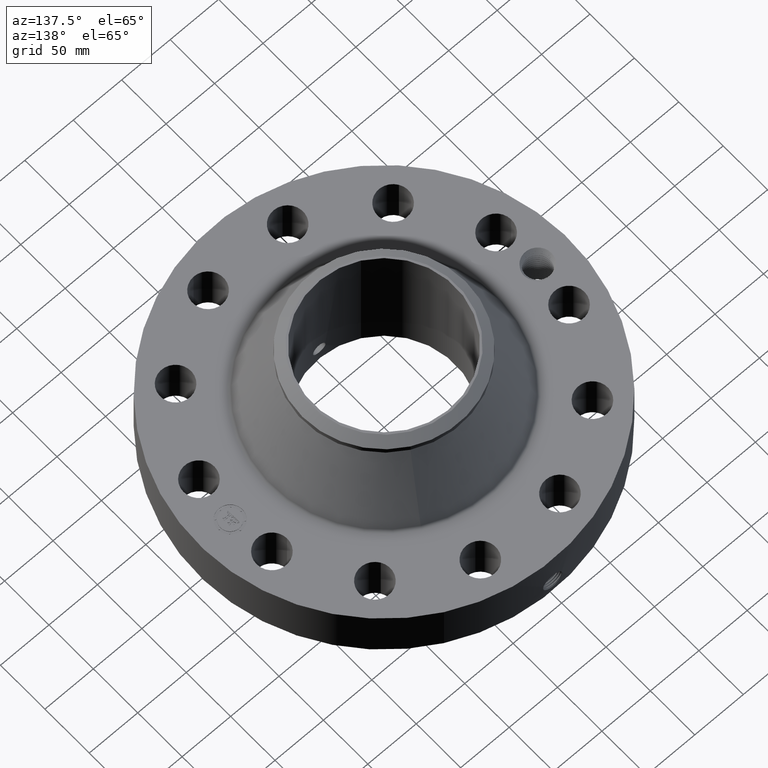
[diagram: clean part render]
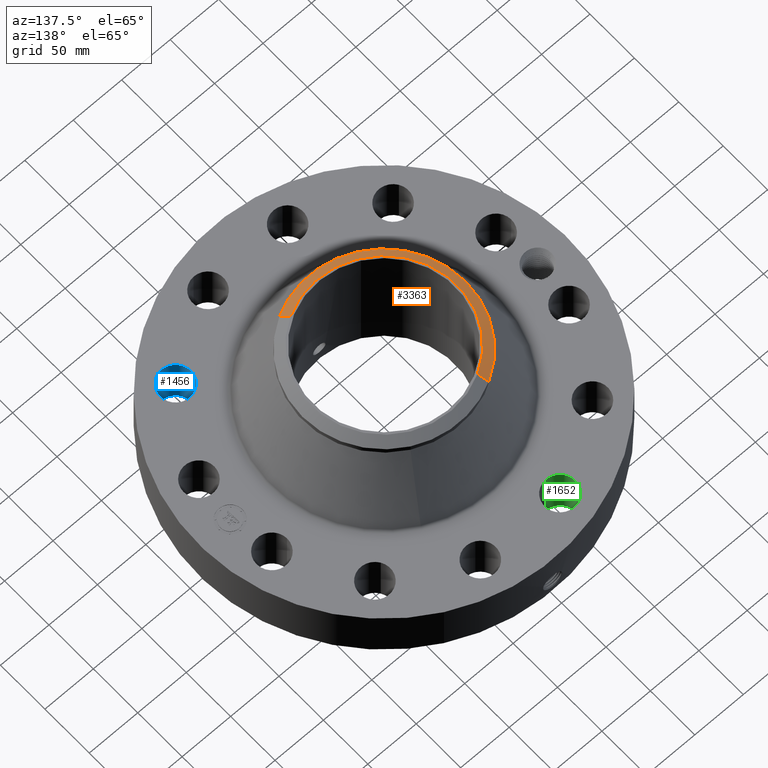
[diagram: same view with three faces highlighted in distinct colors, each labeled with its STEP entity id]
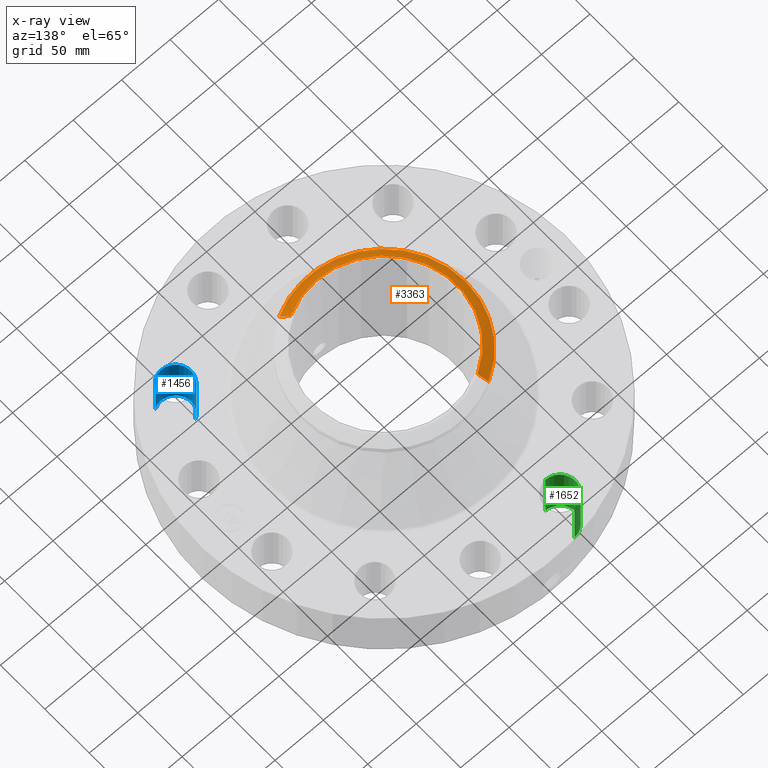
[diagram: x-ray of the same camera — body ghosted, the three highlighted faces saturated]
A machine part, auxiliary view with three faces highlighted in distinct colors.
The next image is the same camera in x-ray (body ghosted, the three faces saturated) — at least one of them is partly hidden behind the body in this view.
Their STEP definitions:

[orange] entity #3363 — the highlighted conical surface has half-angle 52.5 deg.
#2529=AXIS2_PLACEMENT_3D('Circle Axis2P3D',#2527,#2528,$) ;
#3328=AXIS2_PLACEMENT_3D('Cone Axis2P3D',#3325,#3326,#3327) ;
#3346=AXIS2_PLACEMENT_3D('Circle Axis2P3D',#3344,#3345,$) ;
#3353=AXIS2_PLACEMENT_3D('Circle Axis2P3D',#3351,#3352,$) ;
#2522=CARTESIAN_POINT('Vertex',(1.41873530636,-2.59697755866,5.75000000002)) ;
#2524=CARTESIAN_POINT('Vertex',(-1.41873530636,2.59697755866,5.75000000002)) ;
#2527=CARTESIAN_POINT('Axis2P3D Location',(0.,0.,5.75000000002)) ;
#3325=CARTESIAN_POINT('Axis2P3D Location',(0.,0.,5.75000000002)) ;
#3330=CARTESIAN_POINT('Line Origine',(1.50401548342,-2.75308187567,5.61350793582)) ;
#3334=CARTESIAN_POINT('Vertex',(1.58929566048,-2.90918619268,5.47701587162)) ;
#3337=CARTESIAN_POINT('Line Origine',(-1.50401548342,2.75308187567,5.61350793582)) ;
#3341=CARTESIAN_POINT('Vertex',(-1.58929566048,2.90918619268,5.47701587162)) ;
#3344=CARTESIAN_POINT('Axis2P3D Location',(0.,0.,5.47701587162)) ;
#3348=CARTESIAN_POINT('Vertex',(-1.58929566048,-2.90918619268,5.47701587162)) ;
#3351=CARTESIAN_POINT('Axis2P3D Location',(0.,0.,5.47701587162)) ;
#2528=DIRECTION('Axis2P3D Direction',(0.,0.,-0.0393700787402)) ;
#3326=DIRECTION('Axis2P3D Direction',(-0.,-0.,-0.0393700787402)) ;
#3327=DIRECTION('Axis2P3D XDirection',(-0.0188750212049,0.0345504945626,0.)) ;
#3331=DIRECTION('Vector Direction',(0.014974561121,-0.02741075027,-0.023966985394)) ;
#3338=DIRECTION('Vector Direction',(-0.014974561121,0.02741075027,-0.023966985394)) ;
#3345=DIRECTION('Axis2P3D Direction',(0.,0.,-0.0393700787402)) ;
#3352=DIRECTION('Axis2P3D Direction',(0.,0.,-0.0393700787402)) ;
#3332=VECTOR('Line Direction',#3331,0.0393700787402) ;
#3339=VECTOR('Line Direction',#3338,0.0393700787402) ;
#3357=ORIENTED_EDGE('',*,*,#3336,.F.) ;
#3358=ORIENTED_EDGE('',*,*,#2531,.F.) ;
#3359=ORIENTED_EDGE('',*,*,#3343,.T.) ;
#3360=ORIENTED_EDGE('',*,*,#3350,.T.) ;
#3361=ORIENTED_EDGE('',*,*,#3355,.F.) ;
#3363=ADVANCED_FACE('PartBody',(#3362),#3329,.T.) ;
#2530=CIRCLE('generated circle',#2529,2.95924015749) ;
#3347=CIRCLE('generated circle',#3346,3.31500000001) ;
#3354=CIRCLE('generated circle',#3353,3.31500000001) ;
#3329=CONICAL_SURFACE('Cone',#3328,2.95924015749,0.916297857297) ;
#2531=EDGE_CURVE('',#2525,#2523,#2530,.F.) ;
#3336=EDGE_CURVE('',#2523,#3335,#3333,.T.) ;
#3343=EDGE_CURVE('',#2525,#3342,#3340,.T.) ;
#3350=EDGE_CURVE('',#3342,#3349,#3347,.F.) ;
#3355=EDGE_CURVE('',#3335,#3349,#3354,.T.) ;
#3356=EDGE_LOOP('',(#3357,#3358,#3359,#3360,#3361)) ;
#3362=FACE_OUTER_BOUND('',#3356,.T.) ;
#3333=LINE('Line',#3330,#3332) ;
#3340=LINE('Line',#3337,#3339) ;
#2523=VERTEX_POINT('',#2522) ;
#2525=VERTEX_POINT('',#2524) ;
#3335=VERTEX_POINT('',#3334) ;
#3342=VERTEX_POINT('',#3341) ;
#3349=VERTEX_POINT('',#3348) ;

[blue] entity #1456 — the highlighted cylindrical surface (edge-blend (fillet) strip) has radius 15.875 mm, axis along (0, -0, -1).
#277=AXIS2_PLACEMENT_3D('Circle Axis2P3D',#275,#276,$) ;
#665=AXIS2_PLACEMENT_3D('Circle Axis2P3D',#663,#664,$) ;
#1431=AXIS2_PLACEMENT_3D('Cylinder Axis2P3D',#1428,#1429,#1430) ;
#270=CARTESIAN_POINT('Vertex',(4.09423236792,-3.88567614706,0.250000000001)) ;
#272=CARTESIAN_POINT('Vertex',(4.74460239694,-4.95315861781,0.250000000001)) ;
#275=CARTESIAN_POINT('Axis2P3D Location',(4.41941738243,-4.41941738243,0.250000000001)) ;
#663=CARTESIAN_POINT('Axis2P3D Location',(4.41941738243,-4.41941738243,2.44000000001)) ;
#667=CARTESIAN_POINT('Vertex',(4.74460239694,-4.95315861781,2.44000000001)) ;
#669=CARTESIAN_POINT('Vertex',(4.09423236792,-3.88567614706,2.44000000001)) ;
#1428=CARTESIAN_POINT('Axis2P3D Location',(4.41941738243,-4.41941738243,2.43606299214)) ;
#1433=CARTESIAN_POINT('Line Origine',(4.09423236792,-3.88567614706,1.34500000001)) ;
#1438=CARTESIAN_POINT('Line Origine',(4.74460239694,-4.95315861781,1.34500000001)) ;
#276=DIRECTION('Axis2P3D Direction',(0.,0.,-0.0393700787402)) ;
#664=DIRECTION('Axis2P3D Direction',(0.,0.,-0.0393700787402)) ;
#1429=DIRECTION('Axis2P3D Direction',(0.,-0.,-0.0393700787402)) ;
#1430=DIRECTION('Axis2P3D XDirection',(0.0204840954021,-0.0336214951417,0.)) ;
#1434=DIRECTION('Vector Direction',(0.,0.,-0.0393700787402)) ;
#1439=DIRECTION('Vector Direction',(0.,0.,-0.0393700787402)) ;
#1435=VECTOR('Line Direction',#1434,0.0393700787402) ;
#1440=VECTOR('Line Direction',#1439,0.0393700787402) ;
#1451=ORIENTED_EDGE('',*,*,#1442,.F.) ;
#1452=ORIENTED_EDGE('',*,*,#279,.T.) ;
#1453=ORIENTED_EDGE('',*,*,#1437,.T.) ;
#1454=ORIENTED_EDGE('',*,*,#671,.F.) ;
#1456=ADVANCED_FACE('PartBody',(#1455),#1432,.F.) ;
#278=CIRCLE('generated circle',#277,0.625000000003) ;
#666=CIRCLE('generated circle',#665,0.625000000003) ;
#1432=CYLINDRICAL_SURFACE('generated cylinder',#1431,0.625000000003) ;
#279=EDGE_CURVE('',#273,#271,#278,.T.) ;
#671=EDGE_CURVE('',#668,#670,#666,.T.) ;
#1437=EDGE_CURVE('',#271,#670,#1436,.F.) ;
#1442=EDGE_CURVE('',#273,#668,#1441,.F.) ;
#1450=EDGE_LOOP('',(#1451,#1452,#1453,#1454)) ;
#1455=FACE_OUTER_BOUND('',#1450,.T.) ;
#1436=LINE('Line',#1433,#1435) ;
#1441=LINE('Line',#1438,#1440) ;
#271=VERTEX_POINT('',#270) ;
#273=VERTEX_POINT('',#272) ;
#668=VERTEX_POINT('',#667) ;
#670=VERTEX_POINT('',#669) ;

[green] entity #1652 — the highlighted cylindrical surface (edge-blend (fillet) strip) has radius 15.875 mm, axis along (0, 0, -1).
#394=AXIS2_PLACEMENT_3D('Circle Axis2P3D',#392,#393,$) ;
#800=AXIS2_PLACEMENT_3D('Circle Axis2P3D',#798,#799,$) ;
#1634=AXIS2_PLACEMENT_3D('Cylinder Axis2P3D',#1631,#1632,#1633) ;
#392=CARTESIAN_POINT('Axis2P3D Location',(-1.6176190319,6.03703641433,0.250000000001)) ;
#396=CARTESIAN_POINT('Vertex',(-1.60287116609,5.41221043819,0.250000000001)) ;
#398=CARTESIAN_POINT('Vertex',(-1.6323668977,6.66186239047,0.250000000001)) ;
#793=CARTESIAN_POINT('Vertex',(-1.6323668977,6.66186239047,2.44000000001)) ;
#795=CARTESIAN_POINT('Vertex',(-1.60287116609,5.41221043819,2.44000000001)) ;
#798=CARTESIAN_POINT('Axis2P3D Location',(-1.6176190319,6.03703641433,2.44000000001)) ;
#1631=CARTESIAN_POINT('Axis2P3D Location',(-1.6176190319,6.03703641433,2.43606299214)) ;
#1636=CARTESIAN_POINT('Line Origine',(-1.60287116609,5.41221043819,1.34500000001)) ;
#1641=CARTESIAN_POINT('Line Origine',(-1.6323668977,6.66186239047,1.34500000001)) ;
#393=DIRECTION('Axis2P3D Direction',(0.,0.,-0.0393700787402)) ;
#799=DIRECTION('Axis2P3D Direction',(0.,0.,-0.0393700787402)) ;
#1632=DIRECTION('Axis2P3D Direction',(0.,0.,-0.0393700787402)) ;
#1633=DIRECTION('Axis2P3D XDirection',(-0.000928999420902,0.039359116607,0.)) ;
#1637=DIRECTION('Vector Direction',(0.,0.,-0.0393700787402)) ;
#1642=DIRECTION('Vector Direction',(0.,0.,-0.0393700787402)) ;
#1638=VECTOR('Line Direction',#1637,0.0393700787402) ;
#1643=VECTOR('Line Direction',#1642,0.0393700787402) ;
#1647=ORIENTED_EDGE('',*,*,#1640,.F.) ;
#1648=ORIENTED_EDGE('',*,*,#400,.T.) ;
#1649=ORIENTED_EDGE('',*,*,#1645,.T.) ;
#1650=ORIENTED_EDGE('',*,*,#802,.F.) ;
#1652=ADVANCED_FACE('PartBody',(#1651),#1635,.F.) ;
#395=CIRCLE('generated circle',#394,0.625000000003) ;
#801=CIRCLE('generated circle',#800,0.625000000003) ;
#1635=CYLINDRICAL_SURFACE('generated cylinder',#1634,0.625000000003) ;
#400=EDGE_CURVE('',#397,#399,#395,.T.) ;
#802=EDGE_CURVE('',#796,#794,#801,.T.) ;
#1640=EDGE_CURVE('',#397,#796,#1639,.F.) ;
#1645=EDGE_CURVE('',#399,#794,#1644,.F.) ;
#1646=EDGE_LOOP('',(#1647,#1648,#1649,#1650)) ;
#1651=FACE_OUTER_BOUND('',#1646,.T.) ;
#1639=LINE('Line',#1636,#1638) ;
#1644=LINE('Line',#1641,#1643) ;
#397=VERTEX_POINT('',#396) ;
#399=VERTEX_POINT('',#398) ;
#794=VERTEX_POINT('',#793) ;
#796=VERTEX_POINT('',#795) ;